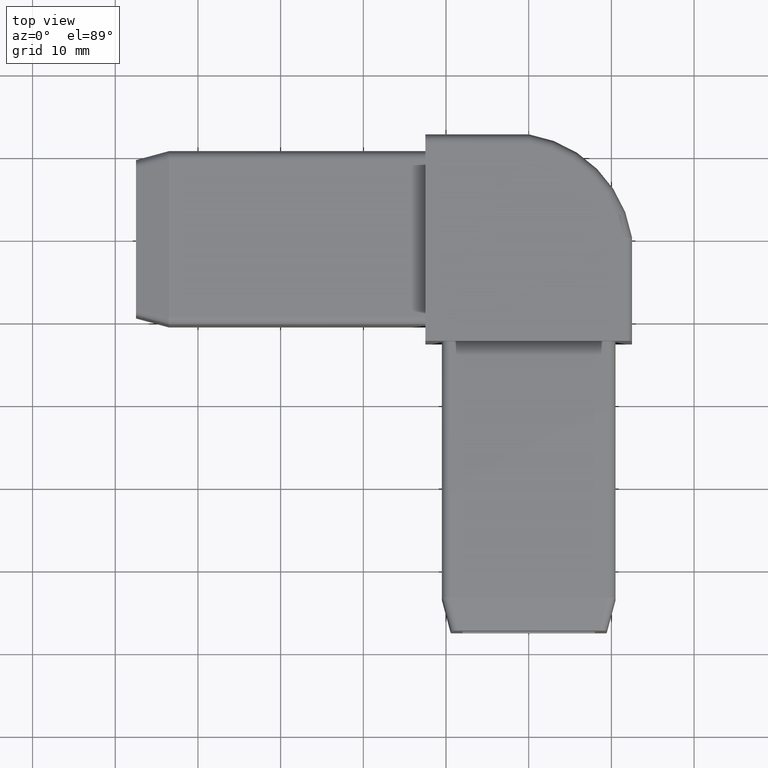
[diagram: clean part render]
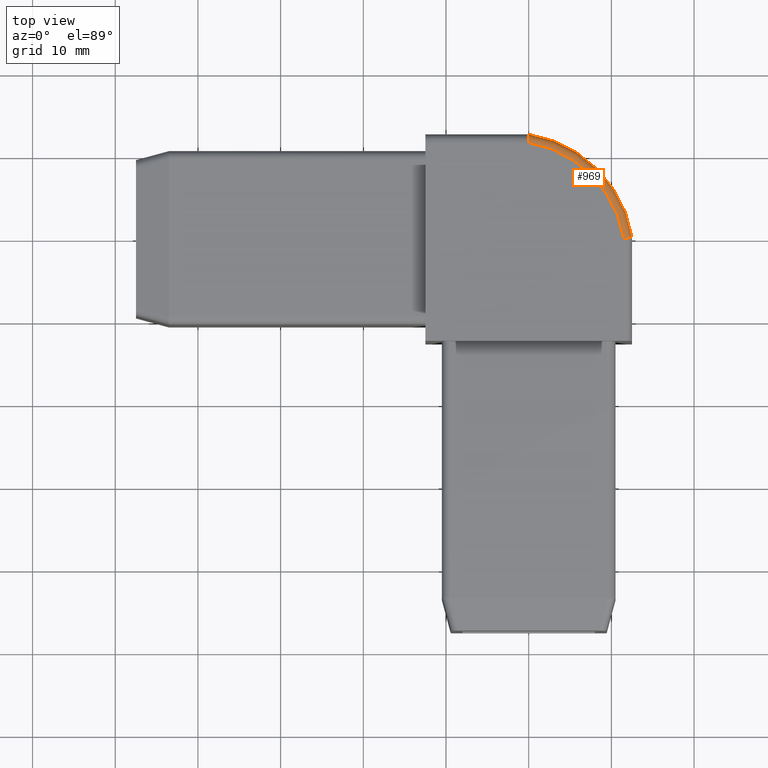
[diagram: same view with one face highlighted and labeled with its STEP entity id]
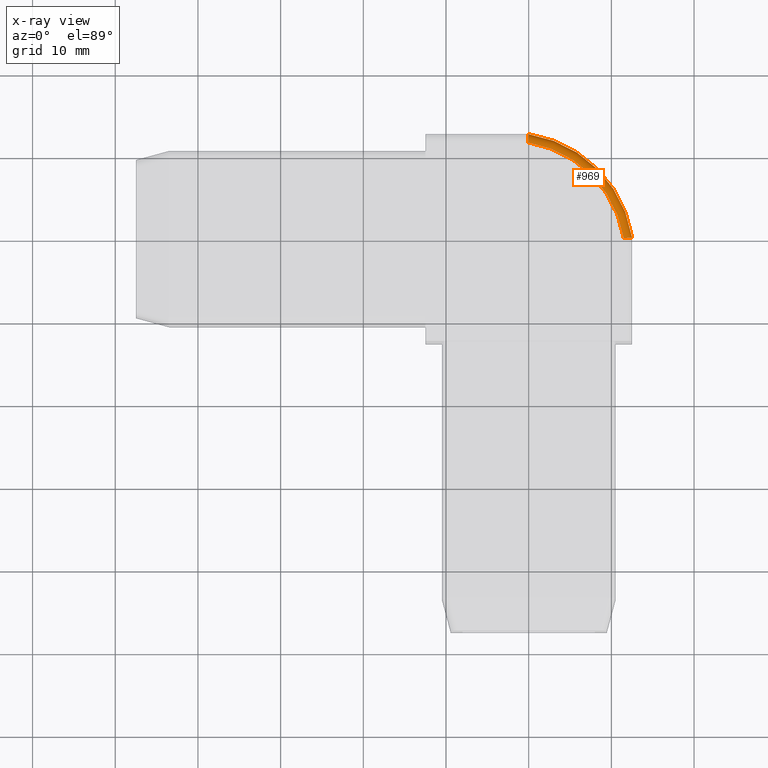
[diagram: x-ray of the same camera — body ghosted, the highlighted face saturated]
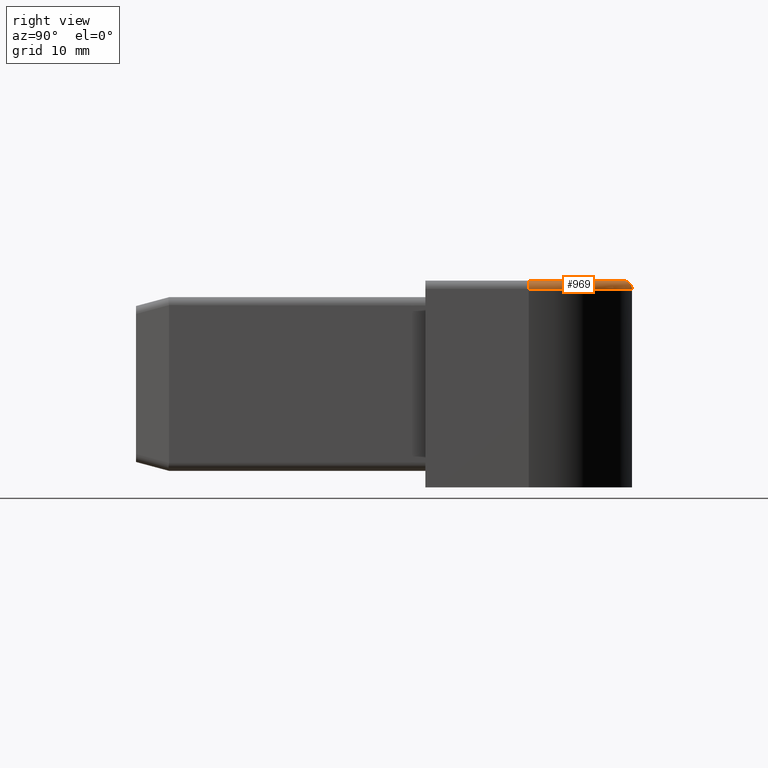
[diagram: same view with one face highlighted and labeled with its STEP entity id]
A machine part, top view. The second image highlights one B-rep face of the part: STEP entity #969.
The next image is the same camera in x-ray: the body ghosted, the highlighted face saturated — about 0% of this face is hidden behind the body in this view.
A second angle (right view) of the same face is appended — the face is thin or edge-on in the first view.
In plain terms, the highlighted toroidal blend (fillet) surface has major radius 14 mm and minor (blend) radius 1 mm.
Its self-contained STEP definition (entity closure, byte-faithful):
#15=TOROIDAL_SURFACE('',#1082,14.,1.);
#16=B_SPLINE_CURVE_WITH_KNOTS('',3,(#1611,#1612,#1613,#1614,#1615,#1616,
#1617,#1618,#1619,#1620,#1621,#1622),.UNSPECIFIED.,.F.,.F.,(4,2,2,2,2,4),
(-0.157816372484156,-0.157332018657827,-0.11710726822599,-0.0779693339599237,
-0.0389542141263502,0.),.UNSPECIFIED.);
#17=B_SPLINE_CURVE_WITH_KNOTS('',3,(#1628,#1629,#1630,#1631,#1632,#1633,
#1634,#1635,#1636,#1637,#1638,#1639),.UNSPECIFIED.,.F.,.F.,(4,2,2,2,2,4),
(-0.00048441925970662,0.,0.0402301845611976,0.0793734061340966,0.118393796682988,
0.157353273296648),.UNSPECIFIED.);
#63=CIRCLE('',#1083,15.);
#64=CIRCLE('',#1084,14.);
#100=FACE_OUTER_BOUND('',#154,.T.);
#154=EDGE_LOOP('',(#811,#812,#813,#814));
#469=VERTEX_POINT('',#1604);
#472=VERTEX_POINT('',#1609);
#473=VERTEX_POINT('',#1624);
#474=VERTEX_POINT('',#1626);
#596=EDGE_CURVE('',#472,#469,#16,.T.);
#597=EDGE_CURVE('',#473,#469,#63,.T.);
#598=EDGE_CURVE('',#472,#474,#64,.T.);
#599=EDGE_CURVE('',#474,#473,#17,.T.);
#811=ORIENTED_EDGE('',*,*,#597,.T.);
#812=ORIENTED_EDGE('',*,*,#596,.F.);
#813=ORIENTED_EDGE('',*,*,#598,.T.);
#814=ORIENTED_EDGE('',*,*,#599,.T.);
#969=ADVANCED_FACE('',(#100),#15,.T.);
#1082=AXIS2_PLACEMENT_3D('',#1623,#1319,#1320);
#1083=AXIS2_PLACEMENT_3D('',#1625,#1321,#1322);
#1084=AXIS2_PLACEMENT_3D('',#1627,#1323,#1324);
#1319=DIRECTION('center_axis',(0.,0.,1.));
#1320=DIRECTION('ref_axis',(1.,0.,0.));
#1321=DIRECTION('center_axis',(0.,0.,1.));
#1322=DIRECTION('ref_axis',(0.707106781186548,0.707106781186547,0.));
#1323=DIRECTION('center_axis',(0.,0.,-1.));
#1324=DIRECTION('ref_axis',(0.707106781186548,0.707106781186547,0.));
#1604=CARTESIAN_POINT('',(1.0547118733939E-14,12.5,11.5));
#1609=CARTESIAN_POINT('',(-0.0791367363201001,11.5,12.5));
#1611=CARTESIAN_POINT('Ctrl Pts',(-0.0791367363201006,11.5,12.5));
#1612=CARTESIAN_POINT('Ctrl Pts',(-0.0790071146504372,11.5016095198015,
12.5));
#1613=CARTESIAN_POINT('Ctrl Pts',(-0.078877504341023,11.5032190382179,12.499996114169));
#1614=CARTESIAN_POINT('Ctrl Pts',(-0.0679850308392774,11.6384949877381,
12.4993429210619));
#1615=CARTESIAN_POINT('Ctrl Pts',(-0.0574182858016733,11.7707221972435,
12.4719034422057));
#1616=CARTESIAN_POINT('Ctrl Pts',(-0.0381543019511311,12.0132854492294,
12.3680272814131));
#1617=CARTESIAN_POINT('Ctrl Pts',(-0.0295942558582324,12.1218309039518,
12.2939123509771));
#1618=CARTESIAN_POINT('Ctrl Pts',(-0.015270947139806,12.3041865279406,12.1083980465621));
#1619=CARTESIAN_POINT('Ctrl Pts',(-0.00963417705027981,12.3763627449314,
11.9988861073275));
#1620=CARTESIAN_POINT('Ctrl Pts',(-0.00196490195682035,12.4747099137048,
11.7584315628955));
#1621=CARTESIAN_POINT('Ctrl Pts',(-8.78760584610448E-15,12.5,11.6298473804212));
#1622=CARTESIAN_POINT('Ctrl Pts',(-8.82432148185952E-15,12.5,11.5));
#1623=CARTESIAN_POINT('Origin',(-2.3195682505013,-2.3195682505013,11.5));
#1624=CARTESIAN_POINT('',(12.5,1.0547118733939E-14,11.5));
#1625=CARTESIAN_POINT('Origin',(-2.3195682505013,-2.3195682505013,11.5));
#1626=CARTESIAN_POINT('',(11.5,-0.0791367363200934,12.5));
#1627=CARTESIAN_POINT('Origin',(-2.3195682505013,-2.3195682505013,12.5));
#1628=CARTESIAN_POINT('Ctrl Pts',(11.5,-0.0791367363200934,12.5));
#1629=CARTESIAN_POINT('Ctrl Pts',(11.5016095198015,-0.0790071146504303,
12.5));
#1630=CARTESIAN_POINT('Ctrl Pts',(11.5032190382179,-0.0788775043410236,
12.499996114169));
#1631=CARTESIAN_POINT('Ctrl Pts',(11.6384949877381,-0.0679850308392781,
12.4993429210619));
#1632=CARTESIAN_POINT('Ctrl Pts',(11.7707221972435,-0.0574182858017211,
12.4719034422057));
#1633=CARTESIAN_POINT('Ctrl Pts',(12.0132854492294,-0.0381543019511593,
12.3680272814131));
#1634=CARTESIAN_POINT('Ctrl Pts',(12.1218309039518,-0.0295942558582164,
12.2939123509771));
#1635=CARTESIAN_POINT('Ctrl Pts',(12.3041865279406,-0.0152709471397982,
12.1083980465621));
#1636=CARTESIAN_POINT('Ctrl Pts',(12.3763627449314,-0.00963417705028062,
11.9988861073275));
#1637=CARTESIAN_POINT('Ctrl Pts',(12.4747099137048,-0.00196490195682096,
11.7584315628955));
#1638=CARTESIAN_POINT('Ctrl Pts',(12.5,-4.34008055942504E-15,11.6298473804212));
#1639=CARTESIAN_POINT('Ctrl Pts',(12.5,-4.38153202955704E-15,11.5));